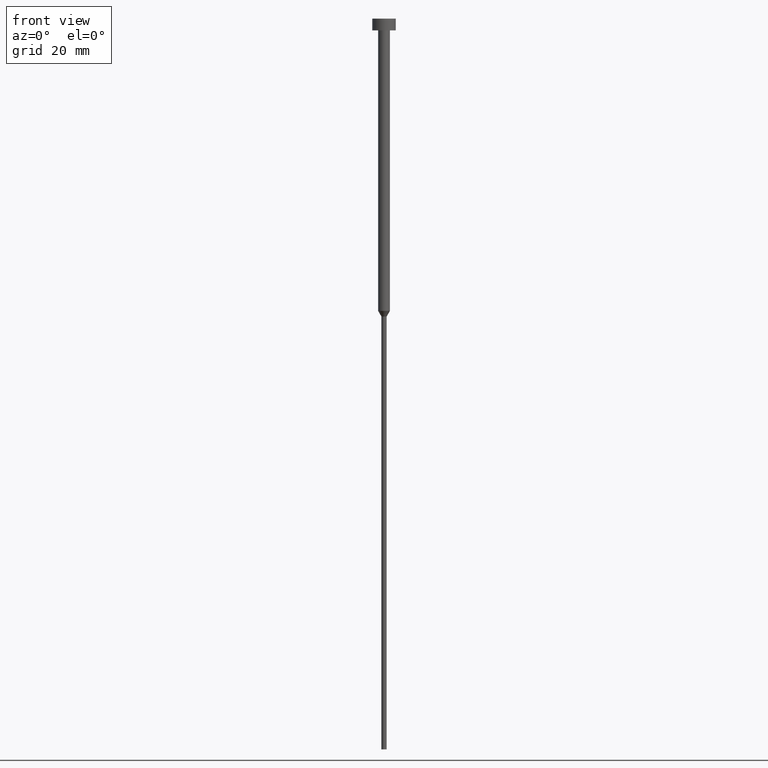
[diagram: clean part render]
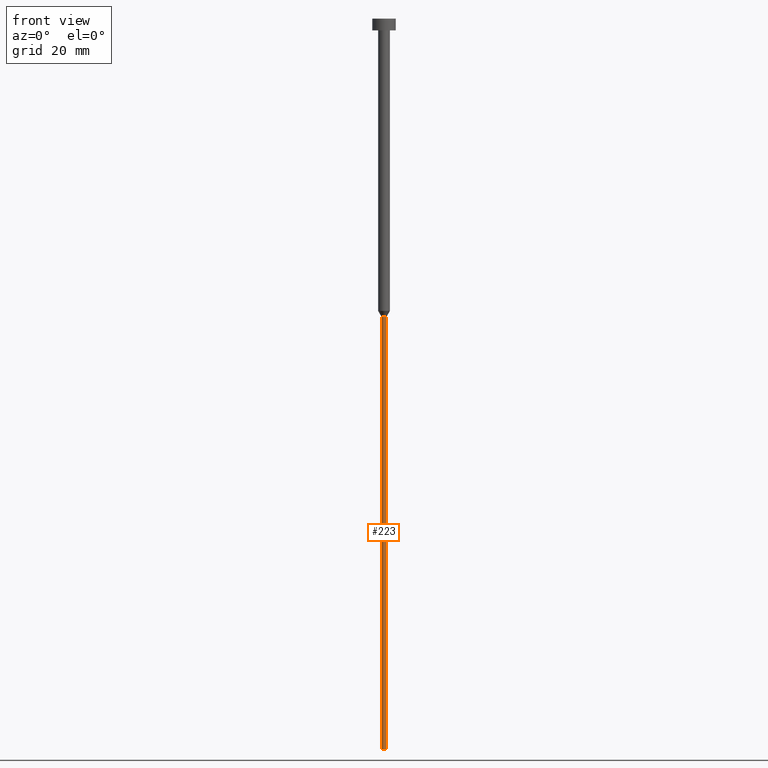
[diagram: same view with one face highlighted and labeled with its STEP entity id]
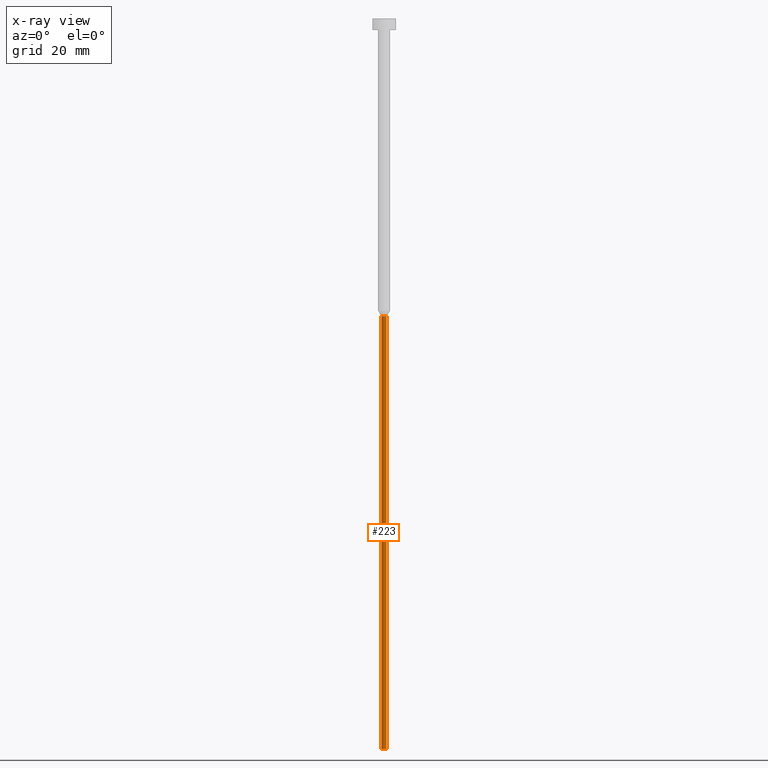
[diagram: x-ray of the same camera — body ghosted, the highlighted face saturated]
A machine part, front view. The second image highlights one B-rep face of the part: STEP entity #223.
The next image is the same camera in x-ray: the body ghosted, the highlighted face saturated — about 0% of this face is hidden behind the body in this view.
In plain terms, the highlighted cylindrical surface (edge-blend (fillet) strip) has radius 0.45 mm, axis along (-0, -0, 1).
Its self-contained STEP definition (entity closure, byte-faithful):
#2 = CYLINDRICAL_SURFACE ( 'NONE', #251, 0.4500000000000000111 ) ;
#6 = CARTESIAN_POINT ( 'NONE',  ( 0.000000000000000000, 0.000000000000000000, 0.000000000000000000 ) ) ;
#9 = DIRECTION ( 'NONE',  ( -0.000000000000000000, -0.000000000000000000, 1.000000000000000000 ) ) ;
#19 = CIRCLE ( 'NONE', #286, 0.4500000000000000111 ) ;
#39 = VERTEX_POINT ( 'NONE', #233 ) ;
#40 = LINE ( 'NONE', #250, #281 ) ;
#51 = VERTEX_POINT ( 'NONE', #128 ) ;
#68 = ORIENTED_EDGE ( 'NONE', *, *, #127, .F. ) ;
#81 = DIRECTION ( 'NONE',  ( 1.000000000000000000, 0.000000000000000000, 0.000000000000000000 ) ) ;
#96 = VERTEX_POINT ( 'NONE', #352 ) ;
#101 = VECTOR ( 'NONE', #197, 1000.000000000000000 ) ;
#110 = DIRECTION ( 'NONE',  ( -0.000000000000000000, -0.000000000000000000, 1.000000000000000000 ) ) ;
#127 = EDGE_CURVE ( 'NONE', #96, #51, #19, .T. ) ;
#128 = CARTESIAN_POINT ( 'NONE',  ( 0.4500000000000000111, 0.000000000000000000, -50.95262794416288443 ) ) ;
#153 = DIRECTION ( 'NONE',  ( 1.000000000000000000, 0.000000000000000000, 0.000000000000000000 ) ) ;
#168 = DIRECTION ( 'NONE',  ( 1.000000000000000000, 0.000000000000000000, 0.000000000000000000 ) ) ;
#169 = CARTESIAN_POINT ( 'NONE',  ( -0.4500000000000000111, 5.510910596163088939E-17, -125.0000000000000000 ) ) ;
#172 = CIRCLE ( 'NONE', #349, 0.4500000000000000111 ) ;
#173 = DIRECTION ( 'NONE',  ( -0.000000000000000000, -0.000000000000000000, 1.000000000000000000 ) ) ;
#197 = DIRECTION ( 'NONE',  ( -0.000000000000000000, -0.000000000000000000, 1.000000000000000000 ) ) ;
#200 = CARTESIAN_POINT ( 'NONE',  ( 0.000000000000000000, 0.000000000000000000, -125.0000000000000000 ) ) ;
#214 = CARTESIAN_POINT ( 'NONE',  ( 0.000000000000000000, 0.000000000000000000, -50.95262794416288443 ) ) ;
#223 = ADVANCED_FACE ( 'NONE', ( #246 ), #2, .T. ) ;
#228 = ORIENTED_EDGE ( 'NONE', *, *, #313, .T. ) ;
#231 = ORIENTED_EDGE ( 'NONE', *, *, #338, .T. ) ;
#233 = CARTESIAN_POINT ( 'NONE',  ( 0.4500000000000000111, 0.000000000000000000, -125.0000000000000000 ) ) ;
#237 = VERTEX_POINT ( 'NONE', #169 ) ;
#246 = FACE_OUTER_BOUND ( 'NONE', #312, .T. ) ;
#250 = CARTESIAN_POINT ( 'NONE',  ( -0.4500000000000000111, 5.510910596163088939E-17, 0.000000000000000000 ) ) ;
#251 = AXIS2_PLACEMENT_3D ( 'NONE', #6, #110, #81 ) ;
#257 = ORIENTED_EDGE ( 'NONE', *, *, #331, .F. ) ;
#276 = LINE ( 'NONE', #344, #101 ) ;
#281 = VECTOR ( 'NONE', #9, 1000.000000000000000 ) ;
#286 = AXIS2_PLACEMENT_3D ( 'NONE', #214, #328, #168 ) ;
#312 = EDGE_LOOP ( 'NONE', ( #257, #231, #228, #68 ) ) ;
#313 = EDGE_CURVE ( 'NONE', #39, #51, #276, .T. ) ;
#328 = DIRECTION ( 'NONE',  ( -0.000000000000000000, -0.000000000000000000, 1.000000000000000000 ) ) ;
#331 = EDGE_CURVE ( 'NONE', #237, #96, #40, .T. ) ;
#338 = EDGE_CURVE ( 'NONE', #237, #39, #172, .T. ) ;
#344 = CARTESIAN_POINT ( 'NONE',  ( 0.4500000000000000111, 0.000000000000000000, 0.000000000000000000 ) ) ;
#349 = AXIS2_PLACEMENT_3D ( 'NONE', #200, #173, #153 ) ;
#352 = CARTESIAN_POINT ( 'NONE',  ( -0.4500000000000000111, 5.510910596163088939E-17, -50.95262794416288443 ) ) ;